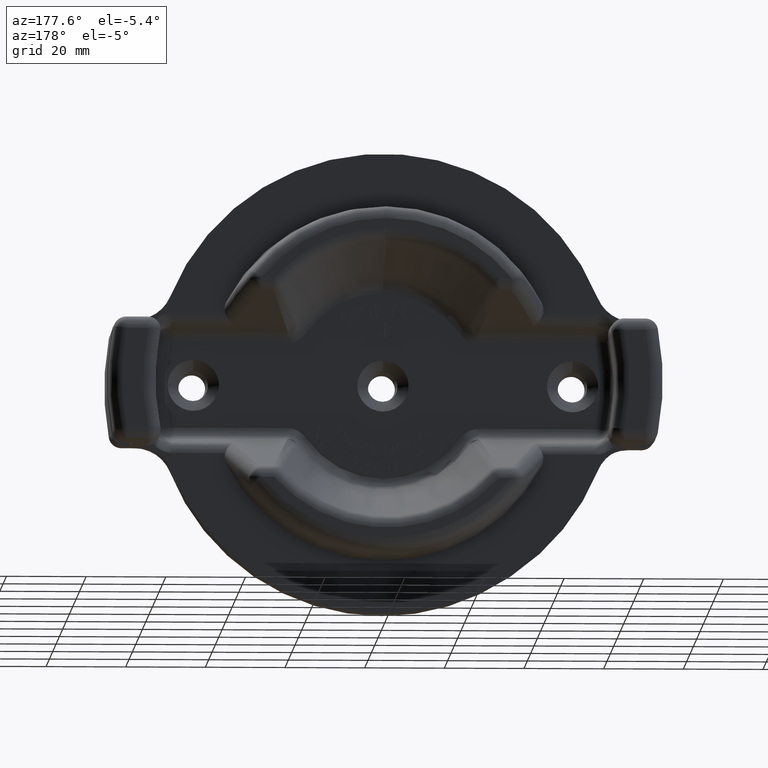
[diagram: clean part render]
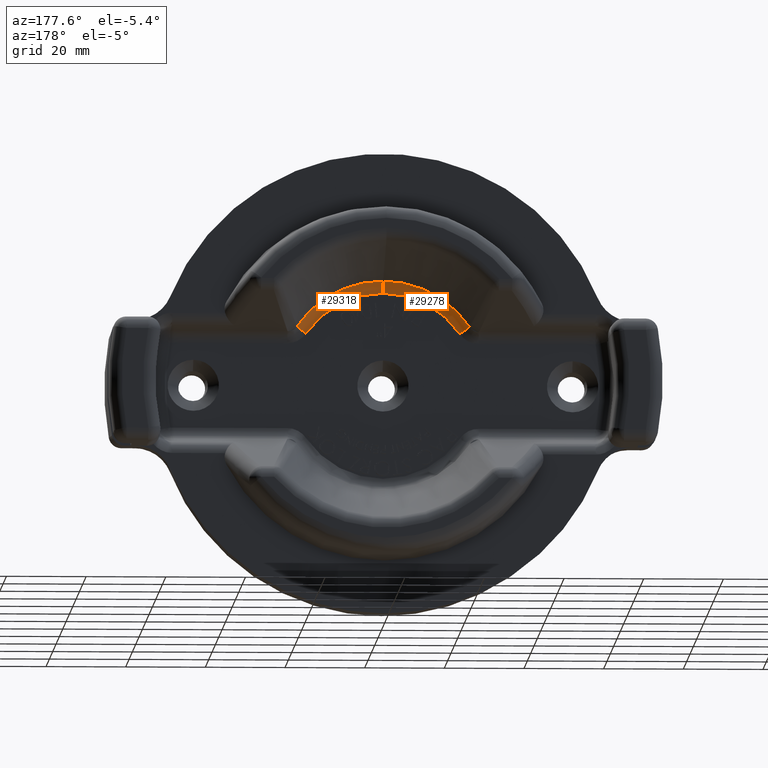
[diagram: same view with one multi-face feature highlighted, each face labeled with its STEP entity id]
A machine part, auxiliary view. The highlighted faces form ONE feature: a constant-radius fillet chain: 2 tangent blend faces with common blend radius 3.175 mm. The faces share edges in the B-rep.
Their STEP definitions:
[1] entity #29318 (Torus):
#1735 = EDGE_LOOP ( 'NONE', ( #4090, #4088, #4087, #4086 ) ) ;
#3488 = CIRCLE ( 'NONE', #12355, 1.033654690778644400 ) ;
#4086 = ORIENTED_EDGE ( 'NONE', *, *, #7222, .T. ) ;
#4087 = ORIENTED_EDGE ( 'NONE', *, *, #21646, .F. ) ;
#4088 = ORIENTED_EDGE ( 'NONE', *, *, #7220, .T. ) ;
#4090 = ORIENTED_EDGE ( 'NONE', *, *, #7217, .F. ) ;
#5515 = CARTESIAN_POINT ( 'NONE',  ( 0.0000000000000000000, 0.4471727172824120900, 0.0000000000000000000 ) ) ;
#5554 = DIRECTION ( 'NONE',  ( -0.0000000000000000000, -1.000000000000000000, -0.0000000000000000000 ) ) ;
#5556 = DIRECTION ( 'NONE',  ( 0.0000000000000000000, 0.0000000000000000000, -1.000000000000000000 ) ) ;
#7217 = EDGE_CURVE ( 'NONE', #30897, #30939, #28642, .T. ) ;
#7220 = EDGE_CURVE ( 'NONE', #30897, #30901, #28643, .T. ) ;
#7222 = EDGE_CURVE ( 'NONE', #30904, #30939, #28644, .T. ) ;
#11284 = DIRECTION ( 'NONE',  ( 0.0000000000000000000, 1.000000000000000000, 0.0000000000000000000 ) ) ;
#11286 = CARTESIAN_POINT ( 'NONE',  ( 0.0000000000000000000, 0.5000000000000000000, 0.0000000000000000000 ) ) ;
#11289 = DIRECTION ( 'NONE',  ( 0.0000000000000000000, 0.0000000000000000000, 1.000000000000000000 ) ) ;
#11882 = AXIS2_PLACEMENT_3D ( 'NONE', #11286, #11284, #11289 ) ;
#12355 = AXIS2_PLACEMENT_3D ( 'NONE', #5515, #5554, #5556 ) ;
#13703 = CARTESIAN_POINT ( 'NONE',  ( 0.0000000000000000000, 0.3750000000000000600, 0.9203662173990632100 ) ) ;
#13706 = CARTESIAN_POINT ( 'NONE',  ( 0.0000000000000000000, 0.4471727172824120900, 1.033654690778644400 ) ) ;
#13709 = CARTESIAN_POINT ( 'NONE',  ( 0.8535246038401509400, 0.4471727172824124800, 0.5830418256079132900 ) ) ;
#13744 = CARTESIAN_POINT ( 'NONE',  ( 0.7599783739206376100, 0.3750000000000000600, 0.5191404870576009600 ) ) ;
#20834 = AXIS2_PLACEMENT_3D ( 'NONE', #32876, #32882, #32883 ) ;
#20947 = AXIS2_PLACEMENT_3D ( 'NONE', #32884, #32885, #32886 ) ;
#20968 = AXIS2_PLACEMENT_3D ( 'NONE', #32887, #32888, #32889 ) ;
#21646 = EDGE_CURVE ( 'NONE', #30904, #30901, #3488, .T. ) ;
#26246 = FACE_OUTER_BOUND ( 'NONE', #1735, .T. ) ;
#26249 = TOROIDAL_SURFACE ( 'NONE', #11882, 0.9203662173990632100, 0.1250000000000000000 ) ;
#28642 = CIRCLE ( 'NONE', #20834, 0.9203662173990632100 ) ;
#28643 = CIRCLE ( 'NONE', #20947, 0.1250000000000000300 ) ;
#28644 = CIRCLE ( 'NONE', #20968, 0.1249999999999999700 ) ;
#29318 = ADVANCED_FACE ( 'NONE', ( #26246 ), #26249, .F. ) ;
#30897 = VERTEX_POINT ( 'NONE', #13703 ) ;
#30901 = VERTEX_POINT ( 'NONE', #13706 ) ;
#30904 = VERTEX_POINT ( 'NONE', #13709 ) ;
#30939 = VERTEX_POINT ( 'NONE', #13744 ) ;
#32876 = CARTESIAN_POINT ( 'NONE',  ( 0.0000000000000000000, 0.3750000000000000600, 0.0000000000000000000 ) ) ;
#32882 = DIRECTION ( 'NONE',  ( 0.0000000000000000000, 1.000000000000000000, 0.0000000000000000000 ) ) ;
#32883 = DIRECTION ( 'NONE',  ( 0.0000000000000000000, 0.0000000000000000000, 1.000000000000000000 ) ) ;
#32884 = CARTESIAN_POINT ( 'NONE',  ( 0.0000000000000000000, 0.5000000000000000000, 0.9203662173990632100 ) ) ;
#32885 = DIRECTION ( 'NONE',  ( -1.000000000000000000, 0.0000000000000000000, 0.0000000000000000000 ) ) ;
#32886 = DIRECTION ( 'NONE',  ( 0.0000000000000000000, 0.0000000000000000000, 1.000000000000000000 ) ) ;
#32887 = CARTESIAN_POINT ( 'NONE',  ( 0.7599783739206376100, 0.5000000000000000000, 0.5191404870576009600 ) ) ;
#32888 = DIRECTION ( 'NONE',  ( 0.5640586075884902500, -0.0000000000000000000, -0.8257347559630355800 ) ) ;
#32889 = DIRECTION ( 'NONE',  ( 0.8257347559630354700, 0.0000000000000000000, 0.5640586075884902500 ) ) ;
[2] entity #29278 (Torus):
#3633 = CIRCLE ( 'NONE', #12370, 0.9203662173990632100 ) ;
#3731 = CIRCLE ( 'NONE', #12425, 0.1249999999999999700 ) ;
#3757 = EDGE_LOOP ( 'NONE', ( #15394, #15557, #15393, #15556 ) ) ;
#6889 = CARTESIAN_POINT ( 'NONE',  ( -0.7599783739206375000, 0.3750000000000000600, 0.5191404870576010700 ) ) ;
#7220 = EDGE_CURVE ( 'NONE', #30897, #30901, #28643, .T. ) ;
#11837 = AXIS2_PLACEMENT_3D ( 'NONE', #24743, #24745, #24879 ) ;
#12370 = AXIS2_PLACEMENT_3D ( 'NONE', #29520, #29536, #29537 ) ;
#12425 = AXIS2_PLACEMENT_3D ( 'NONE', #22117, #22119, #22120 ) ;
#12471 = AXIS2_PLACEMENT_3D ( 'NONE', #23374, #23375, #23376 ) ;
#13703 = CARTESIAN_POINT ( 'NONE',  ( 0.0000000000000000000, 0.3750000000000000600, 0.9203662173990632100 ) ) ;
#13706 = CARTESIAN_POINT ( 'NONE',  ( 0.0000000000000000000, 0.4471727172824120900, 1.033654690778644400 ) ) ;
#14434 = VERTEX_POINT ( 'NONE', #14866 ) ;
#14866 = CARTESIAN_POINT ( 'NONE',  ( -0.8535246038401509400, 0.4471727172824124800, 0.5830418256079134000 ) ) ;
#15393 = ORIENTED_EDGE ( 'NONE', *, *, #24136, .F. ) ;
#15394 = ORIENTED_EDGE ( 'NONE', *, *, #7220, .F. ) ;
#15556 = ORIENTED_EDGE ( 'NONE', *, *, #24507, .F. ) ;
#15557 = ORIENTED_EDGE ( 'NONE', *, *, #21733, .F. ) ;
#20947 = AXIS2_PLACEMENT_3D ( 'NONE', #32884, #32885, #32886 ) ;
#21733 = EDGE_CURVE ( 'NONE', #28782, #30897, #3633, .T. ) ;
#22117 = CARTESIAN_POINT ( 'NONE',  ( -0.7599783739206376100, 0.5000000000000000000, 0.5191404870576011900 ) ) ;
#22119 = DIRECTION ( 'NONE',  ( 0.5640586075884901400, 1.652125829045762400E-016, 0.8257347559630353600 ) ) ;
#22120 = DIRECTION ( 'NONE',  ( 0.8257347559630354700, 0.0000000000000000000, -0.5640586075884902500 ) ) ;
#23374 = CARTESIAN_POINT ( 'NONE',  ( 0.0000000000000000000, 0.4471727172824120900, 0.0000000000000000000 ) ) ;
#23375 = DIRECTION ( 'NONE',  ( -0.0000000000000000000, -1.000000000000000000, -0.0000000000000000000 ) ) ;
#23376 = DIRECTION ( 'NONE',  ( 0.0000000000000000000, 0.0000000000000000000, -1.000000000000000000 ) ) ;
#24136 = EDGE_CURVE ( 'NONE', #14434, #28782, #3731, .T. ) ;
#24507 = EDGE_CURVE ( 'NONE', #30901, #14434, #30301, .T. ) ;
#24743 = CARTESIAN_POINT ( 'NONE',  ( 0.0000000000000000000, 0.5000000000000000000, 0.0000000000000000000 ) ) ;
#24745 = DIRECTION ( 'NONE',  ( 0.0000000000000000000, 1.000000000000000000, 0.0000000000000000000 ) ) ;
#24879 = DIRECTION ( 'NONE',  ( 0.0000000000000000000, 0.0000000000000000000, 1.000000000000000000 ) ) ;
#28643 = CIRCLE ( 'NONE', #20947, 0.1250000000000000300 ) ;
#28782 = VERTEX_POINT ( 'NONE', #6889 ) ;
#29278 = ADVANCED_FACE ( 'NONE', ( #30783 ), #30775, .F. ) ;
#29520 = CARTESIAN_POINT ( 'NONE',  ( 0.0000000000000000000, 0.3750000000000000600, 0.0000000000000000000 ) ) ;
#29536 = DIRECTION ( 'NONE',  ( 0.0000000000000000000, 1.000000000000000000, 0.0000000000000000000 ) ) ;
#29537 = DIRECTION ( 'NONE',  ( 0.0000000000000000000, 0.0000000000000000000, 1.000000000000000000 ) ) ;
#30301 = CIRCLE ( 'NONE', #12471, 1.033654690778644400 ) ;
#30775 = TOROIDAL_SURFACE ( 'NONE', #11837, 0.9203662173990632100, 0.1250000000000000000 ) ;
#30783 = FACE_OUTER_BOUND ( 'NONE', #3757, .T. ) ;
#30897 = VERTEX_POINT ( 'NONE', #13703 ) ;
#30901 = VERTEX_POINT ( 'NONE', #13706 ) ;
#32884 = CARTESIAN_POINT ( 'NONE',  ( 0.0000000000000000000, 0.5000000000000000000, 0.9203662173990632100 ) ) ;
#32885 = DIRECTION ( 'NONE',  ( -1.000000000000000000, 0.0000000000000000000, 0.0000000000000000000 ) ) ;
#32886 = DIRECTION ( 'NONE',  ( 0.0000000000000000000, 0.0000000000000000000, 1.000000000000000000 ) ) ;